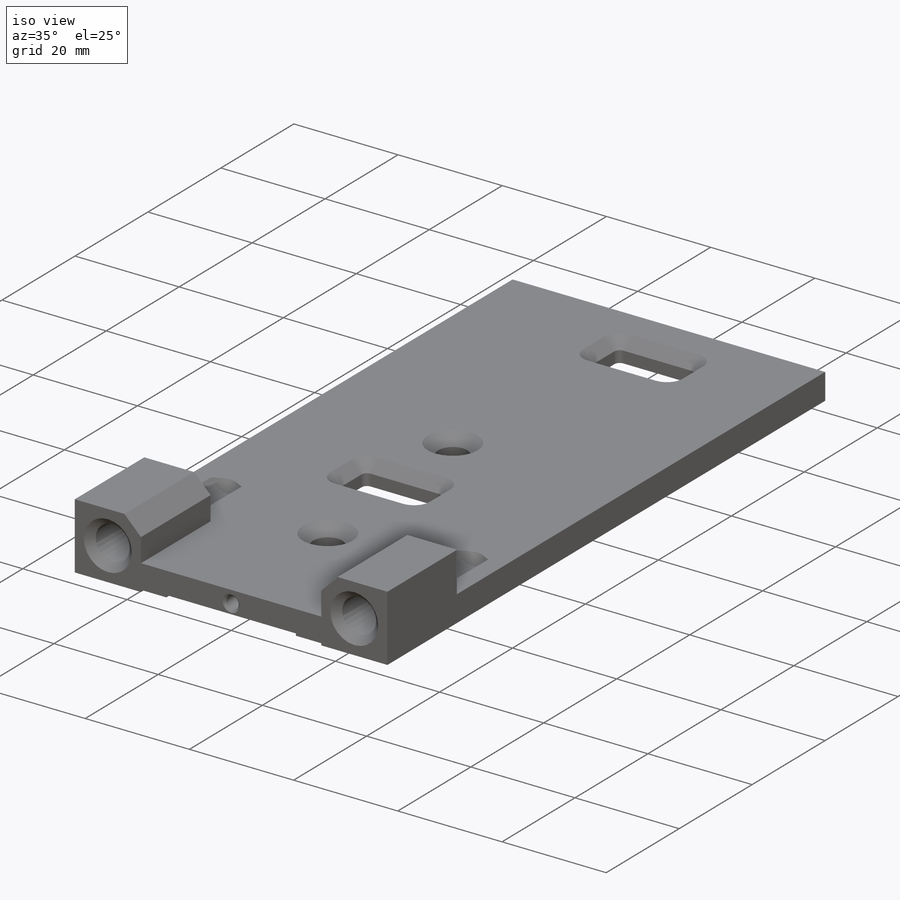
[diagram: iso view]
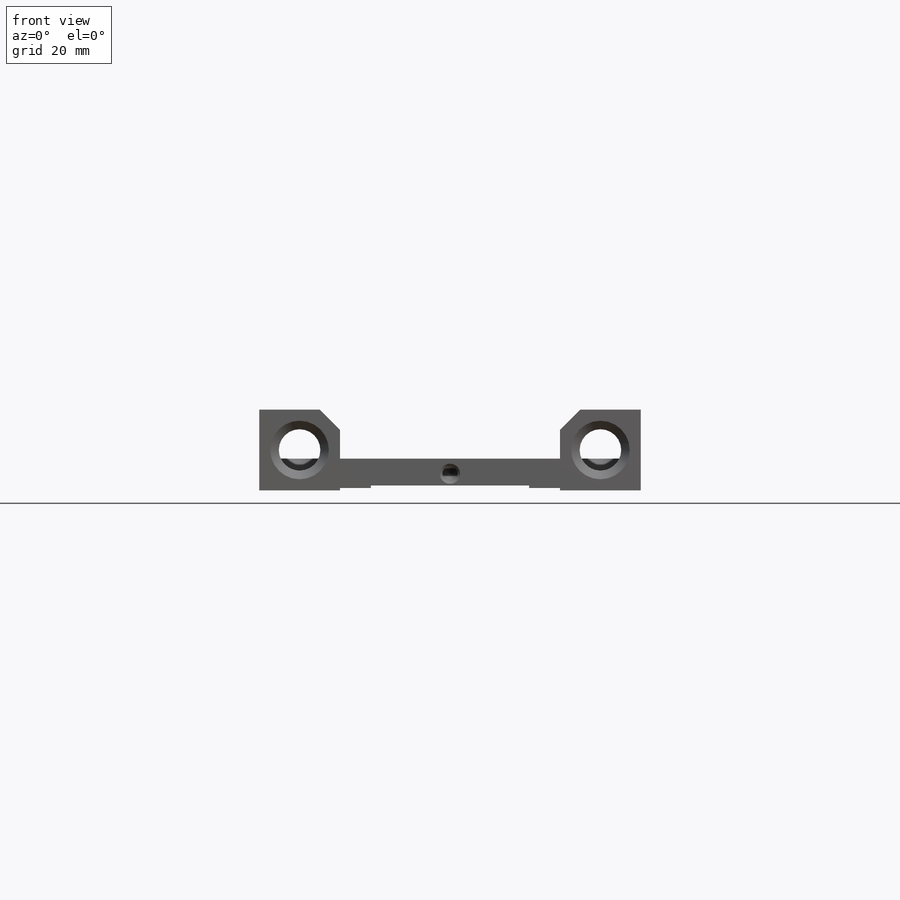
[diagram: front view]
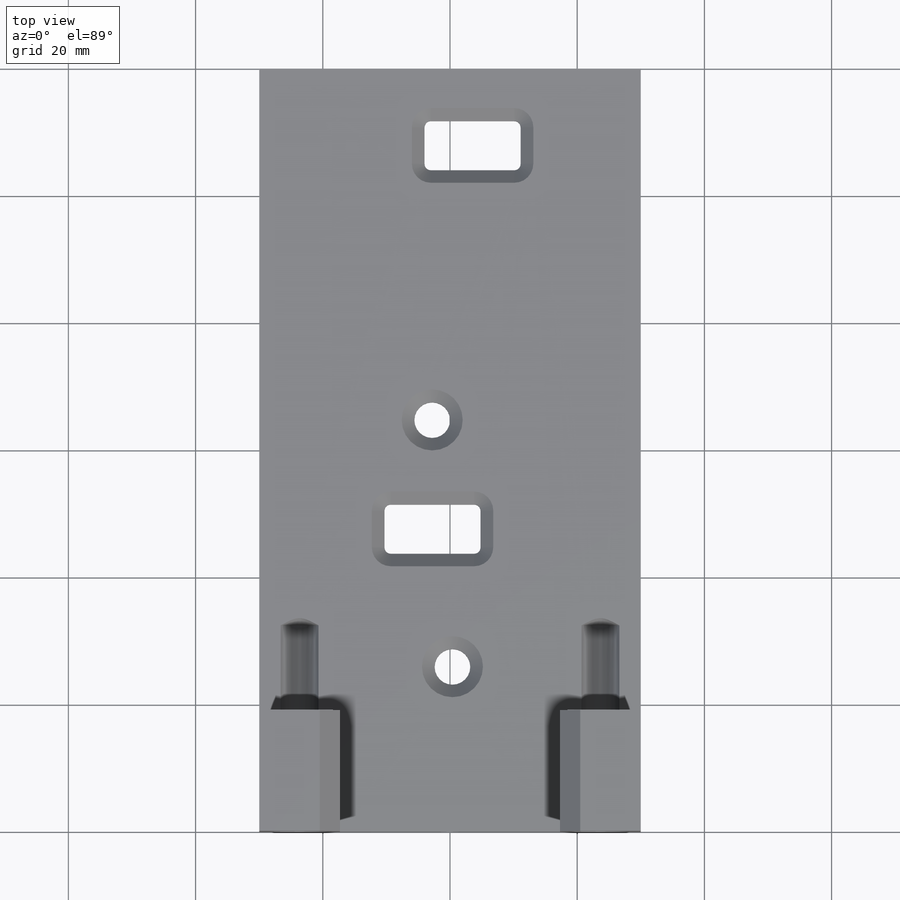
[diagram: top view]
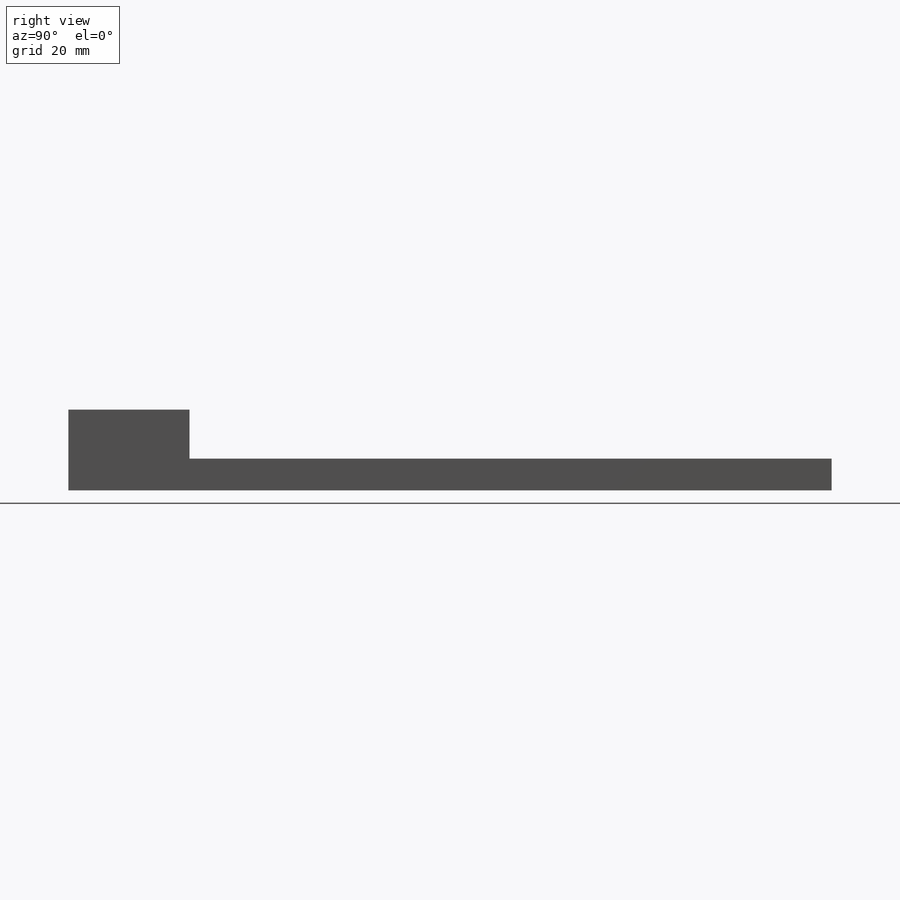
[diagram: right view]
SOLIDWORKS PART (.sldprt)
format: sldprt  version: not decoded by parser v0  size: 391,168 bytes
history: native  units: mm
features: sketch x12, cut_extrude x7, hole x2, thread x2, chamfer x2, material x1, extrude x1, fillet x1 (+16 scaffold rows collapsed)
feature tree (44):
  scaffold x16  (default folders/planes/origin — collapsed)
  material  "Material <not specified>"
  sketch  "Sketch1"  dims[D1=60.0mm D2=120.0mm]
  extrude  "Boss-Extrude1"  Depth=12.7mm
  sketch  "Sketch2"  dims[D1=12.7mm D2=5.0mm]
  cut_extrude  "Cut-Extrude1"  [1 undecoded]
  hole  "3/32 (0.09375) Diameter Hole1"  Diameter=2.38125mm Depth=19.05mm
  sketch  "Sketch9"  dims[D1=~2.38125mm]
  sketch  "Sketch8"  dims[hole-wizard template sketch: 39 standard entries collapsed; hole parameters kept: c13.Hole Dia.=~2.38125mm c13.Hole Depth=19.05mm c13.Near C'Sink Dia.=3.175mm c13.D4=~33.297463mm c13.Near C'Sink Angle=90.0deg c14.D5=~14.816244mm c14.Drill Angle=118.0deg]
  sketch  "Sketch3"  dims[D1=193.5mm D2=12.7mm]
  cut_extrude  "Cut-Extrude2"  [1 undecoded]
  hole  "5/16-18 Tapped Hole1"  Diameter=6.5278mm Depth=32.45mm
  sketch  "Sketch5"
  sketch  "Sketch4"  dims[hole-wizard template sketch: 40 standard entries collapsed; hole parameters kept: c13.Tap Drill Depth=32.45mm c13.Near C'Sink Dia.=9.2075mm c13.D4=~33.297463mm c13.Near C'Sink Angle=90.0deg c14.D5=~14.816244mm c14.Drill Angle=118.0deg]
  thread  "Hole Thread1"  Diameter=25.4mm  [1 undecoded]
  thread  "Hole Thread2"  Diameter=25.4mm  [1 undecoded]
  chamfer  "Chamfer1"  Distance=3.175mm Angle=45deg
  sketch  "Sketch6"  dims[D1=7.75mm D2=15.1mm D3=111.7966mm D4=60.3mm D5=4.0mm D6=10.3mm]
  cut_extrude  "Cut-Extrude3"  [1 undecoded]
  fillet  "Fillet1"  Radius=1mm
  sketch  "Sketch7"  dims[c1.D1=5.6mm c1.D5=5.6mm c1.D2=38.8mm c1.D3=64.7568mm c1.D4=14.5mm c2.D5=3.1851mm]
  cut_extrude  "Cut-Extrude4"  [1 undecoded]
  chamfer  "Chamfer2"  Distance=2mm Angle=45deg
  sketch  "Sketch10"  dims[D1=19.05mm]
  cut_extrude  "Cut-Extrude5"  [1 undecoded]
  sketch  "Sketch12"  dims[D1=0.4mm]
  cut_extrude  "Cut-Extrude11"  [1 undecoded]
  sketch  "Sketch13"
  cut_extrude  "Cut-Extrude12"  [1 undecoded]
decode coverage: 18 of 27 modeling features carry decoded parameters
note: ~ marks probable driven/reference dimensions
note: 9 parameter values undecoded
summary: no parameter record found for 7 features
note: suppression state not decoded; provenance and decode notes live in map.json
